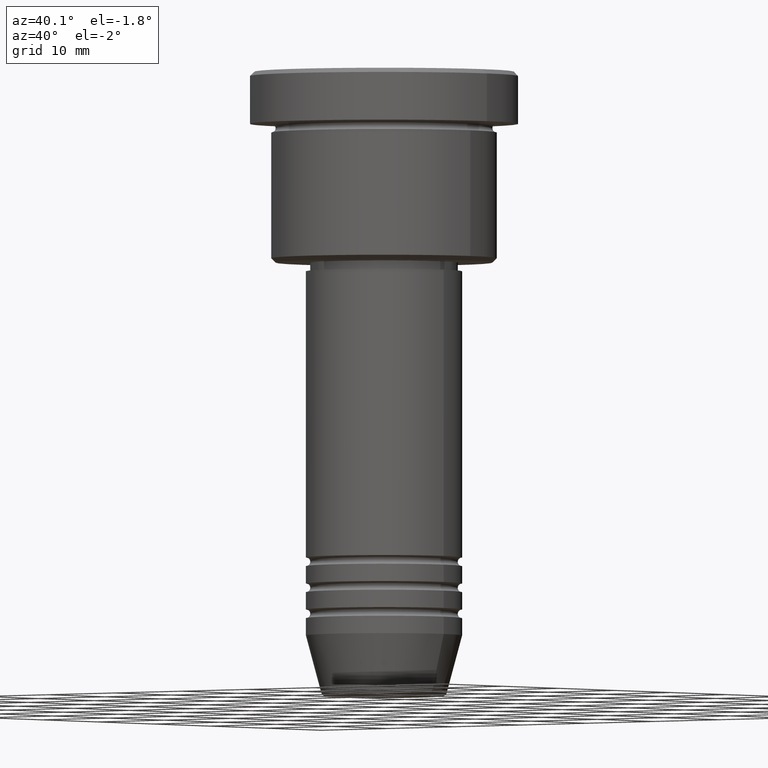
[diagram: clean part render]
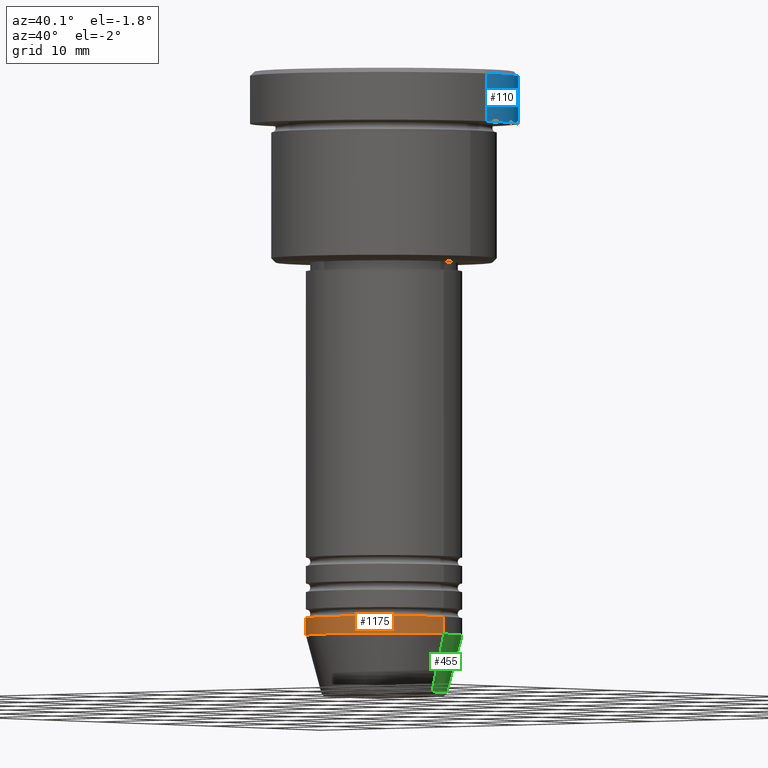
[diagram: same view with three faces highlighted in distinct colors, each labeled with its STEP entity id]
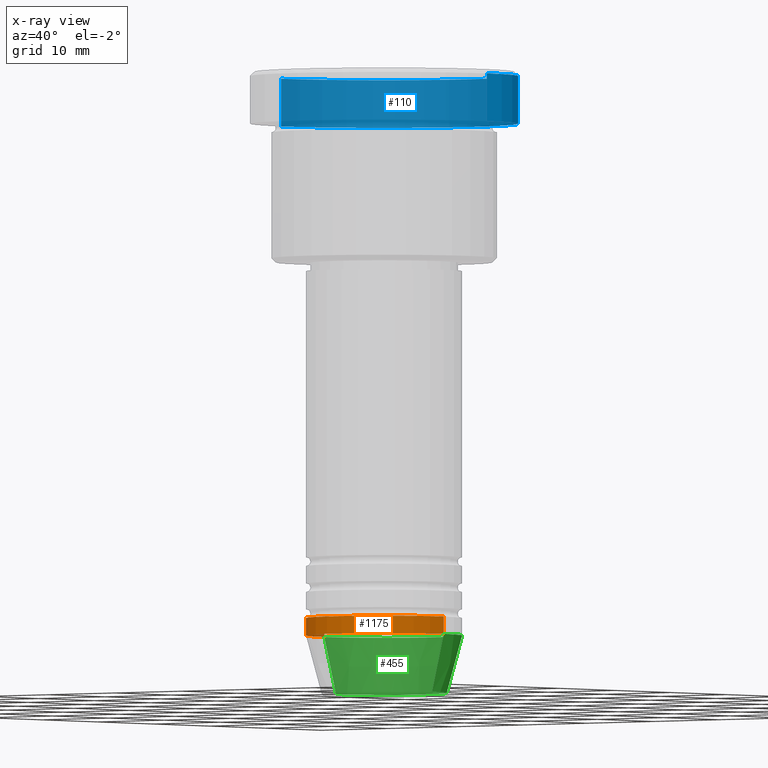
[diagram: x-ray of the same camera — body ghosted, the three highlighted faces saturated]
A machine part, auxiliary view with three faces highlighted in distinct colors.
The next image is the same camera in x-ray (body ghosted, the three faces saturated) — at least one of them is partly hidden behind the body in this view.
Their STEP definitions:

[orange] entity #1175 — the highlighted cylindrical surface (partial cylindrical patch) has radius 9 mm, axis along (-0, -0, 1).
#72 = VERTEX_POINT ( 'NONE', #810 ) ;
#84 = CARTESIAN_POINT ( 'NONE',  ( 0.000000000000000000, 0.000000000000000000, -63.00000000000000000 ) ) ;
#92 = EDGE_CURVE ( 'NONE', #72, #311, #715, .T. ) ;
#216 = AXIS2_PLACEMENT_3D ( 'NONE', #84, #1075, #438 ) ;
#254 = ORIENTED_EDGE ( 'NONE', *, *, #891, .F. ) ;
#271 = DIRECTION ( 'NONE',  ( 1.000000000000000000, 0.000000000000000000, 0.000000000000000000 ) ) ;
#277 = LINE ( 'NONE', #393, #504 ) ;
#281 = CARTESIAN_POINT ( 'NONE',  ( 0.000000000000000000, 0.000000000000000000, 0.000000000000000000 ) ) ;
#311 = VERTEX_POINT ( 'NONE', #1077 ) ;
#327 = DIRECTION ( 'NONE',  ( -0.000000000000000000, -0.000000000000000000, 1.000000000000000000 ) ) ;
#347 = CARTESIAN_POINT ( 'NONE',  ( -9.000000000000000000, 1.102182119232617714E-15, -65.00000000000000000 ) ) ;
#380 = EDGE_CURVE ( 'NONE', #759, #72, #1028, .T. ) ;
#393 = CARTESIAN_POINT ( 'NONE',  ( -9.000000000000000000, 1.102182119232617714E-15, 0.000000000000000000 ) ) ;
#438 = DIRECTION ( 'NONE',  ( 1.000000000000000000, 0.000000000000000000, 0.000000000000000000 ) ) ;
#462 = DIRECTION ( 'NONE',  ( -0.000000000000000000, -0.000000000000000000, 1.000000000000000000 ) ) ;
#504 = VECTOR ( 'NONE', #1001, 1000.000000000000000 ) ;
#532 = CARTESIAN_POINT ( 'NONE',  ( 9.000000000000000000, 0.000000000000000000, 0.000000000000000000 ) ) ;
#632 = ORIENTED_EDGE ( 'NONE', *, *, #738, .F. ) ;
#637 = CARTESIAN_POINT ( 'NONE',  ( -9.000000000000000000, 1.102182119232617714E-15, -63.00000000000000000 ) ) ;
#670 = CARTESIAN_POINT ( 'NONE',  ( 0.000000000000000000, 0.000000000000000000, -65.00000000000000000 ) ) ;
#704 = ORIENTED_EDGE ( 'NONE', *, *, #380, .T. ) ;
#715 = LINE ( 'NONE', #532, #781 ) ;
#738 = EDGE_CURVE ( 'NONE', #1178, #311, #1087, .T. ) ;
#743 = DIRECTION ( 'NONE',  ( -0.000000000000000000, -0.000000000000000000, 1.000000000000000000 ) ) ;
#759 = VERTEX_POINT ( 'NONE', #347 ) ;
#781 = VECTOR ( 'NONE', #327, 1000.000000000000000 ) ;
#809 = AXIS2_PLACEMENT_3D ( 'NONE', #281, #462, #271 ) ;
#810 = CARTESIAN_POINT ( 'NONE',  ( 9.000000000000000000, 0.000000000000000000, -65.00000000000000000 ) ) ;
#841 = EDGE_LOOP ( 'NONE', ( #254, #704, #1070, #632 ) ) ;
#891 = EDGE_CURVE ( 'NONE', #759, #1178, #277, .T. ) ;
#1001 = DIRECTION ( 'NONE',  ( -0.000000000000000000, -0.000000000000000000, 1.000000000000000000 ) ) ;
#1028 = CIRCLE ( 'NONE', #1146, 9.000000000000000000 ) ;
#1030 = DIRECTION ( 'NONE',  ( 1.000000000000000000, 0.000000000000000000, 0.000000000000000000 ) ) ;
#1070 = ORIENTED_EDGE ( 'NONE', *, *, #92, .T. ) ;
#1075 = DIRECTION ( 'NONE',  ( -0.000000000000000000, -0.000000000000000000, 1.000000000000000000 ) ) ;
#1077 = CARTESIAN_POINT ( 'NONE',  ( 9.000000000000000000, 0.000000000000000000, -63.00000000000000000 ) ) ;
#1085 = CYLINDRICAL_SURFACE ( 'NONE', #809, 9.000000000000000000 ) ;
#1087 = CIRCLE ( 'NONE', #216, 9.000000000000000000 ) ;
#1146 = AXIS2_PLACEMENT_3D ( 'NONE', #670, #743, #1030 ) ;
#1175 = ADVANCED_FACE ( 'NONE', ( #1182 ), #1085, .T. ) ;
#1178 = VERTEX_POINT ( 'NONE', #637 ) ;
#1182 = FACE_OUTER_BOUND ( 'NONE', #841, .T. ) ;

[blue] entity #110 — the highlighted cylindrical surface (partial cylindrical patch) has radius 15.5 mm, axis along (-0, -0, 1).
#7 = EDGE_CURVE ( 'NONE', #598, #509, #1168, .T. ) ;
#46 = CIRCLE ( 'NONE', #969, 15.50000000000000000 ) ;
#110 = ADVANCED_FACE ( 'NONE', ( #161 ), #528, .T. ) ;
#113 = ORIENTED_EDGE ( 'NONE', *, *, #597, .T. ) ;
#161 = FACE_OUTER_BOUND ( 'NONE', #587, .T. ) ;
#185 = DIRECTION ( 'NONE',  ( -0.000000000000000000, -0.000000000000000000, 1.000000000000000000 ) ) ;
#238 = CARTESIAN_POINT ( 'NONE',  ( 15.50000000000000000, 0.000000000000000000, -0.5000000000000125455 ) ) ;
#240 = DIRECTION ( 'NONE',  ( 0.000000000000000000, 0.000000000000000000, -1.000000000000000000 ) ) ;
#248 = VECTOR ( 'NONE', #668, 1000.000000000000000 ) ;
#265 = AXIS2_PLACEMENT_3D ( 'NONE', #731, #185, #906 ) ;
#285 = VERTEX_POINT ( 'NONE', #641 ) ;
#344 = EDGE_CURVE ( 'NONE', #598, #285, #46, .T. ) ;
#345 = ORIENTED_EDGE ( 'NONE', *, *, #796, .T. ) ;
#361 = LINE ( 'NONE', #1009, #248 ) ;
#386 = VECTOR ( 'NONE', #533, 1000.000000000000000 ) ;
#495 = CARTESIAN_POINT ( 'NONE',  ( 0.000000000000000000, 0.000000000000000000, -5.999999999999995559 ) ) ;
#509 = VERTEX_POINT ( 'NONE', #238 ) ;
#528 = CYLINDRICAL_SURFACE ( 'NONE', #265, 15.50000000000000000 ) ;
#533 = DIRECTION ( 'NONE',  ( -0.000000000000000000, -0.000000000000000000, 1.000000000000000000 ) ) ;
#562 = ORIENTED_EDGE ( 'NONE', *, *, #7, .F. ) ;
#587 = EDGE_LOOP ( 'NONE', ( #1130, #345, #113, #562 ) ) ;
#597 = EDGE_CURVE ( 'NONE', #837, #509, #672, .T. ) ;
#598 = VERTEX_POINT ( 'NONE', #1147 ) ;
#641 = CARTESIAN_POINT ( 'NONE',  ( -15.50000000000000000, 1.898202538678397557E-15, -5.999999999999995559 ) ) ;
#668 = DIRECTION ( 'NONE',  ( -0.000000000000000000, -0.000000000000000000, 1.000000000000000000 ) ) ;
#672 = CIRCLE ( 'NONE', #765, 15.50000000000000000 ) ;
#716 = CARTESIAN_POINT ( 'NONE',  ( 15.50000000000000000, 0.000000000000000000, 0.000000000000000000 ) ) ;
#731 = CARTESIAN_POINT ( 'NONE',  ( 0.000000000000000000, 0.000000000000000000, 0.000000000000000000 ) ) ;
#765 = AXIS2_PLACEMENT_3D ( 'NONE', #779, #240, #959 ) ;
#779 = CARTESIAN_POINT ( 'NONE',  ( 0.000000000000000000, 0.000000000000000000, -0.5000000000000125455 ) ) ;
#796 = EDGE_CURVE ( 'NONE', #285, #837, #361, .T. ) ;
#837 = VERTEX_POINT ( 'NONE', #1098 ) ;
#853 = DIRECTION ( 'NONE',  ( -0.000000000000000000, -0.000000000000000000, 1.000000000000000000 ) ) ;
#906 = DIRECTION ( 'NONE',  ( 1.000000000000000000, 0.000000000000000000, 0.000000000000000000 ) ) ;
#959 = DIRECTION ( 'NONE',  ( 1.000000000000000000, 0.000000000000000000, 0.000000000000000000 ) ) ;
#969 = AXIS2_PLACEMENT_3D ( 'NONE', #495, #853, #1015 ) ;
#1009 = CARTESIAN_POINT ( 'NONE',  ( -15.50000000000000000, 1.898202538678397557E-15, 0.000000000000000000 ) ) ;
#1015 = DIRECTION ( 'NONE',  ( 1.000000000000000000, 0.000000000000000000, 0.000000000000000000 ) ) ;
#1098 = CARTESIAN_POINT ( 'NONE',  ( -15.50000000000000000, 1.898202538678397557E-15, -0.5000000000000125455 ) ) ;
#1130 = ORIENTED_EDGE ( 'NONE', *, *, #344, .T. ) ;
#1147 = CARTESIAN_POINT ( 'NONE',  ( 15.50000000000000000, 0.000000000000000000, -5.999999999999995559 ) ) ;
#1168 = LINE ( 'NONE', #716, #386 ) ;

[green] entity #455 — the highlighted conical surface has half-angle 15 deg.
#38 = CARTESIAN_POINT ( 'NONE',  ( -9.000000000000000000, 1.102182119232617714E-15, -65.00000000000000000 ) ) ;
#66 = CIRCLE ( 'NONE', #673, 7.223655072137188604 ) ;
#72 = VERTEX_POINT ( 'NONE', #810 ) ;
#194 = CONICAL_SURFACE ( 'NONE', #466, 9.000000000000000000, 0.2617993877991500740 ) ;
#199 = ORIENTED_EDGE ( 'NONE', *, *, #1046, .F. ) ;
#204 = DIRECTION ( 'NONE',  ( 1.000000000000000000, 0.000000000000000000, 0.000000000000000000 ) ) ;
#282 = DIRECTION ( 'NONE',  ( -0.2588190451025213501, 3.169619151431772337E-17, 0.9659258262890680902 ) ) ;
#347 = CARTESIAN_POINT ( 'NONE',  ( -9.000000000000000000, 1.102182119232617714E-15, -65.00000000000000000 ) ) ;
#353 = CARTESIAN_POINT ( 'NONE',  ( 0.000000000000000000, 0.000000000000000000, -65.00000000000000000 ) ) ;
#402 = FACE_OUTER_BOUND ( 'NONE', #529, .T. ) ;
#416 = VERTEX_POINT ( 'NONE', #653 ) ;
#455 = ADVANCED_FACE ( 'NONE', ( #402 ), #194, .T. ) ;
#466 = AXIS2_PLACEMENT_3D ( 'NONE', #859, #761, #204 ) ;
#473 = DIRECTION ( 'NONE',  ( 1.000000000000000000, 0.000000000000000000, 0.000000000000000000 ) ) ;
#490 = LINE ( 'NONE', #38, #828 ) ;
#494 = CARTESIAN_POINT ( 'NONE',  ( 0.000000000000000000, 0.000000000000000000, -71.62940952255127058 ) ) ;
#521 = VERTEX_POINT ( 'NONE', #590 ) ;
#529 = EDGE_LOOP ( 'NONE', ( #930, #744, #199, #1012 ) ) ;
#581 = VECTOR ( 'NONE', #741, 1000.000000000000000 ) ;
#590 = CARTESIAN_POINT ( 'NONE',  ( -7.223655072137189492, 9.934123627281765110E-16, -71.62940952255127058 ) ) ;
#642 = CARTESIAN_POINT ( 'NONE',  ( 9.000000000000000000, 0.000000000000000000, -65.00000000000000000 ) ) ;
#643 = DIRECTION ( 'NONE',  ( -0.000000000000000000, -0.000000000000000000, 1.000000000000000000 ) ) ;
#653 = CARTESIAN_POINT ( 'NONE',  ( 7.223655072137188604, 0.000000000000000000, -71.62940952255127058 ) ) ;
#673 = AXIS2_PLACEMENT_3D ( 'NONE', #494, #643, #473 ) ;
#691 = DIRECTION ( 'NONE',  ( -0.000000000000000000, -0.000000000000000000, 1.000000000000000000 ) ) ;
#717 = DIRECTION ( 'NONE',  ( 1.000000000000000000, 0.000000000000000000, 0.000000000000000000 ) ) ;
#741 = DIRECTION ( 'NONE',  ( 0.2588190451025213501, 0.000000000000000000, 0.9659258262890680902 ) ) ;
#744 = ORIENTED_EDGE ( 'NONE', *, *, #857, .T. ) ;
#759 = VERTEX_POINT ( 'NONE', #347 ) ;
#761 = DIRECTION ( 'NONE',  ( -0.000000000000000000, -0.000000000000000000, 1.000000000000000000 ) ) ;
#810 = CARTESIAN_POINT ( 'NONE',  ( 9.000000000000000000, 0.000000000000000000, -65.00000000000000000 ) ) ;
#828 = VECTOR ( 'NONE', #282, 1000.000000000000000 ) ;
#830 = AXIS2_PLACEMENT_3D ( 'NONE', #353, #691, #717 ) ;
#839 = EDGE_CURVE ( 'NONE', #416, #521, #66, .T. ) ;
#857 = EDGE_CURVE ( 'NONE', #521, #759, #490, .T. ) ;
#859 = CARTESIAN_POINT ( 'NONE',  ( 0.000000000000000000, 0.000000000000000000, -65.00000000000000000 ) ) ;
#930 = ORIENTED_EDGE ( 'NONE', *, *, #839, .T. ) ;
#1000 = LINE ( 'NONE', #642, #581 ) ;
#1012 = ORIENTED_EDGE ( 'NONE', *, *, #1114, .F. ) ;
#1046 = EDGE_CURVE ( 'NONE', #72, #759, #1126, .T. ) ;
#1114 = EDGE_CURVE ( 'NONE', #416, #72, #1000, .T. ) ;
#1126 = CIRCLE ( 'NONE', #830, 9.000000000000000000 ) ;